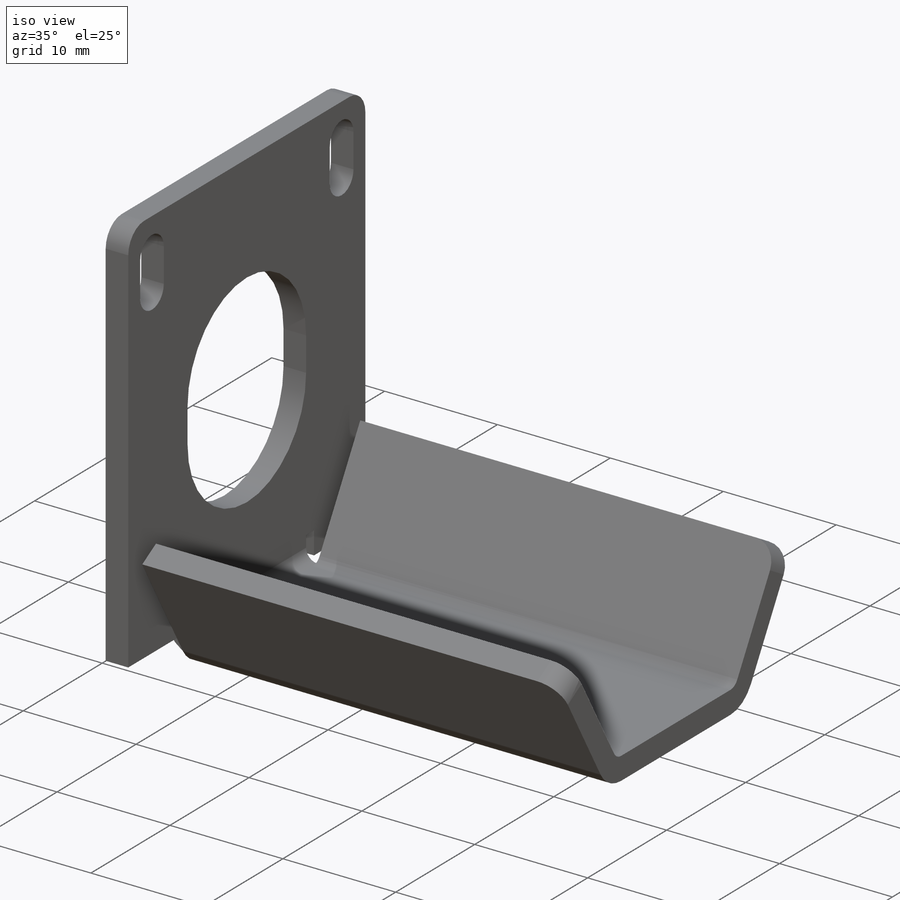
[diagram: iso view]
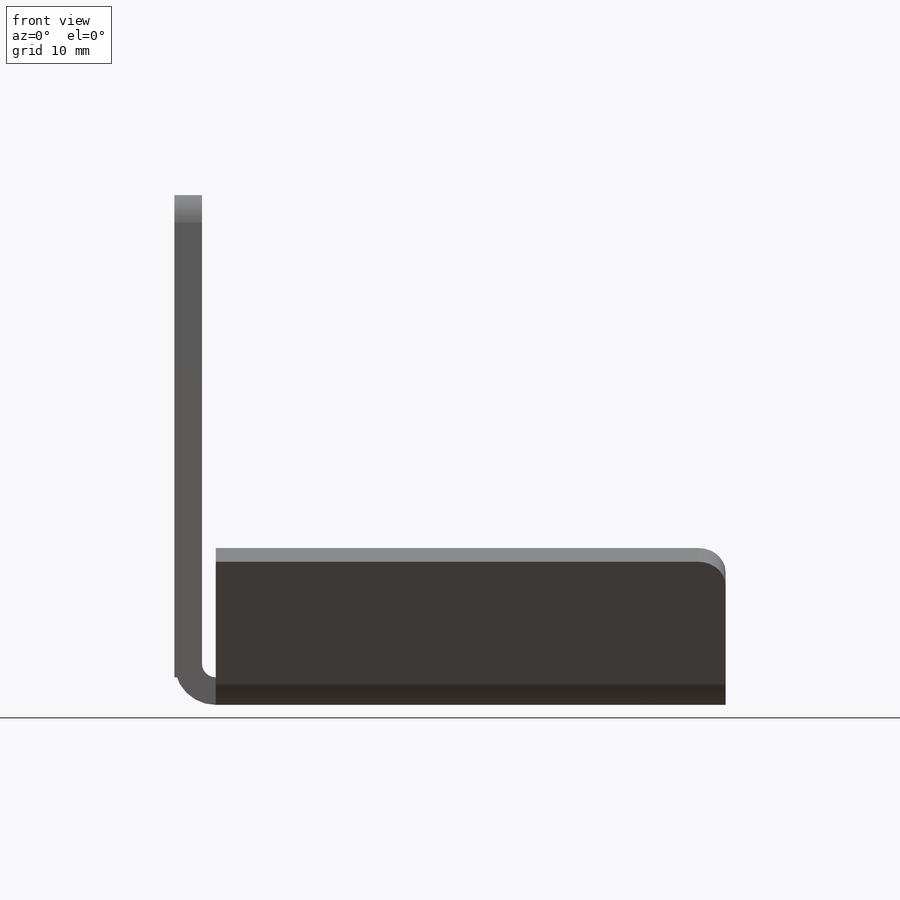
[diagram: front view]
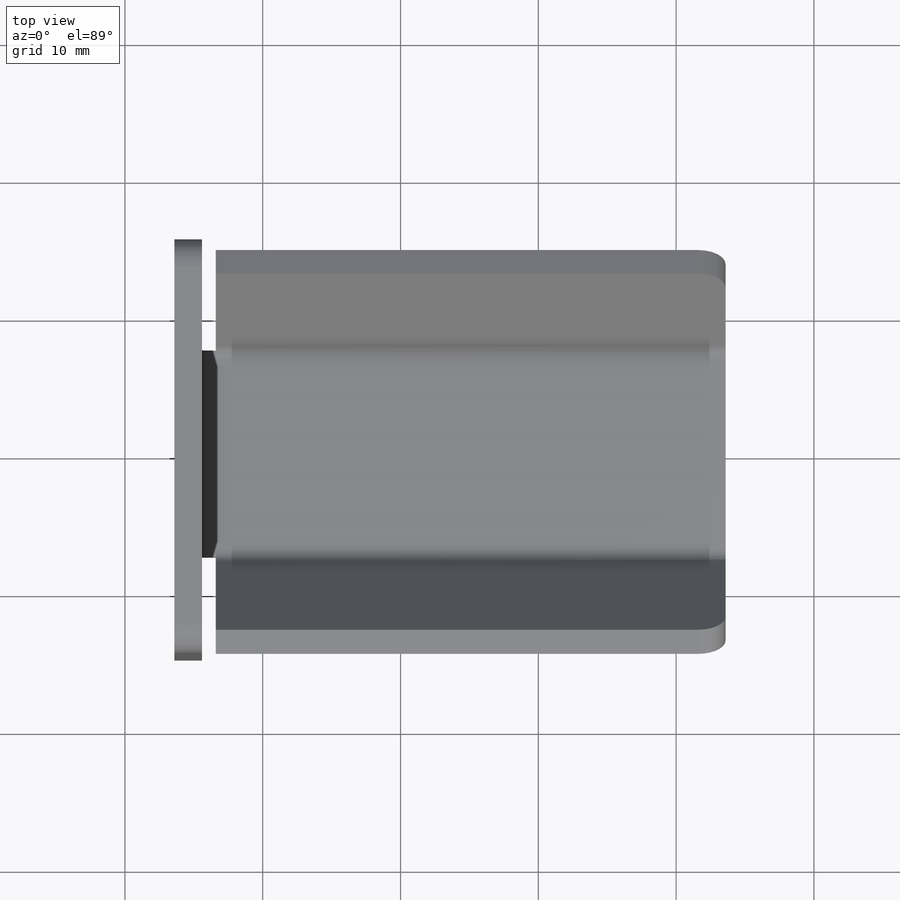
[diagram: top view]
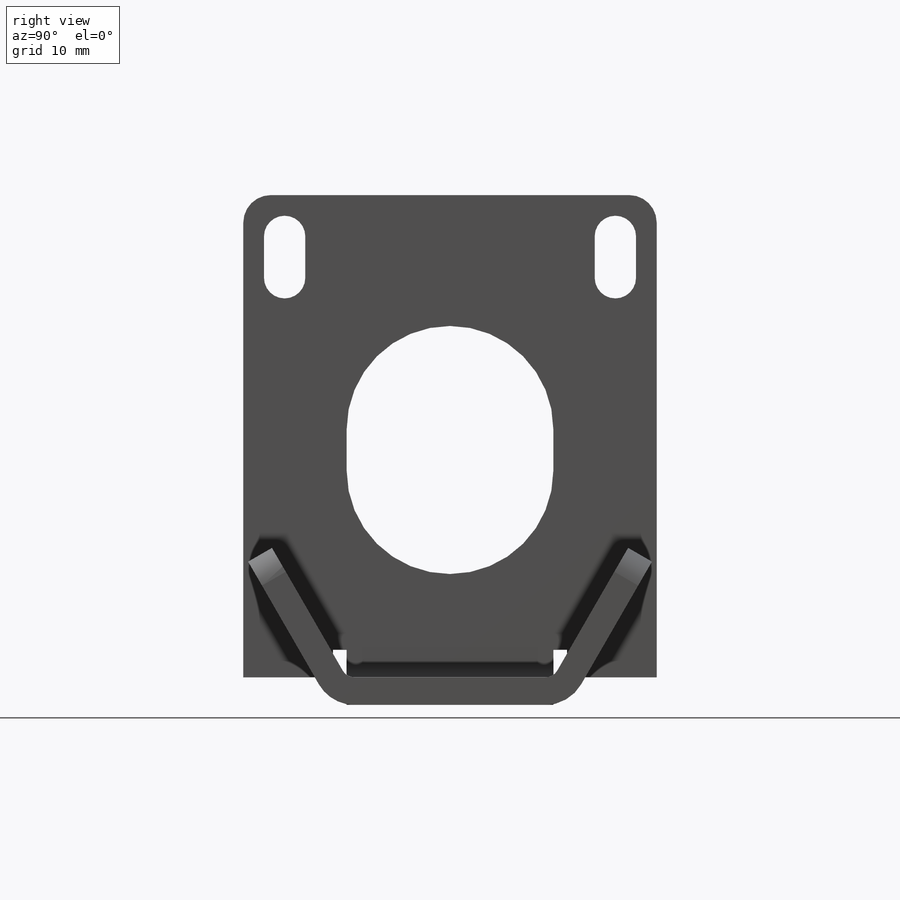
[diagram: right view]
SOLIDWORKS PART (.sldprt)
format: sldprt  version: not decoded by parser v0  size: 397,312 bytes
history: native  units: mm
features: sketch x9, sheet_metal_op x4, cut_extrude x3, fillet x3, material x1 + 3 further entries (+11 scaffold rows collapsed; 1 parser-record rows omitted)
feature tree (35):
  scaffold x11  (default folders/planes/origin — collapsed)
  material  "Material <not specified>"
  sketch  "Sketch1"  dims[c1.D2=20.0mm c1.D1=30.0mm c2.D2=40.0mm c2.D3=35.0mm]
  sheet_metal_op  "Sheet-Metal1"
  sheet_metal_op  "Base-Flange1"
  sketch  "Sketch6"  dims[c1.D1=38.0mm c1.D2=7.5mm c1.D3=7.5mm c2.D1=1.0mm c2.D2=500.0mm c2.D3=0.0mm c2.D4=90.0deg c2.D5=1.0 c2.D8=1.0mm c2.D9=1.0mm c3.D1=1.0mm c3.D2=500.0mm c3.D3=0.0mm c3.D6=10.0mm c3.D7=40.0mm]
  sketch  "Sketch7"  dims[D1=3.0mm D2=3.0mm D11=3.0mm D12=3.0mm D3=3.0mm D4=3.0mm D5=3.0mm D6=3.0mm D7=3.0mm D8=3.0mm D9=3.0mm D10=3.0mm]
  cut_extrude  "Cut-Extrude1"  [1 undecoded]
  sketch  "Sketch8"  dims[D1=15.0mm D2=3.0mm]
  cut_extrude  "Cut-Extrude2"  Depth=0 Edge-Flange3=0
  sketch  "Sketch27"
  sketch  "Sketch28"
  sheet_metal_op  "EdgeBend4"
  sheet_metal_op  "EdgeBend5"
  fillet  "Fillet5"  Radius=2mm
  "Flat-Pattern1"
  sketch  "Bend-Lines1"
  sketch  "Bounding-Box1"
  "Flatten-<EdgeBend4>1"
  "Flatten-<EdgeBend5>1"
  parser-record x1  (decoder bookkeeping rows leaked as tree rows — omitted from the tree; the rows remain in map.json)
  fillet  "Fillet2"  Radius=1mm
  sketch  "Sketch29"  dims[D1=1.0mm D2=1.0mm]
  cut_extrude  "Cut-Extrude7"  [1 undecoded]
  fillet  "Fillet3"  Radius=1mm
decode coverage: 9 of 19 modeling features carry decoded parameters; 3 rows unclassified (native names shown)
note: 2 parameter values undecoded
note: suppression state not decoded; provenance and decode notes live in map.json
